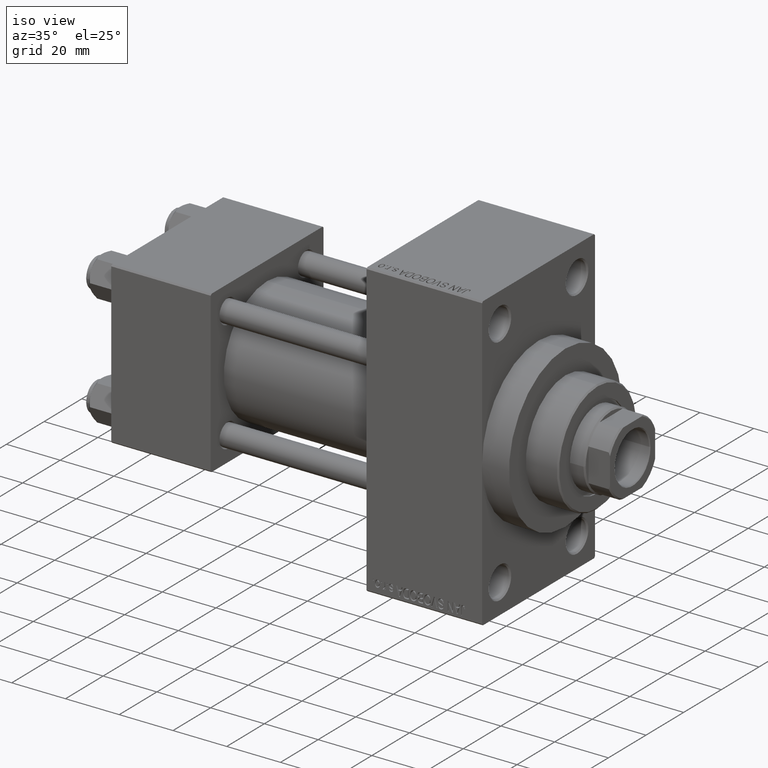
[diagram: clean part render]
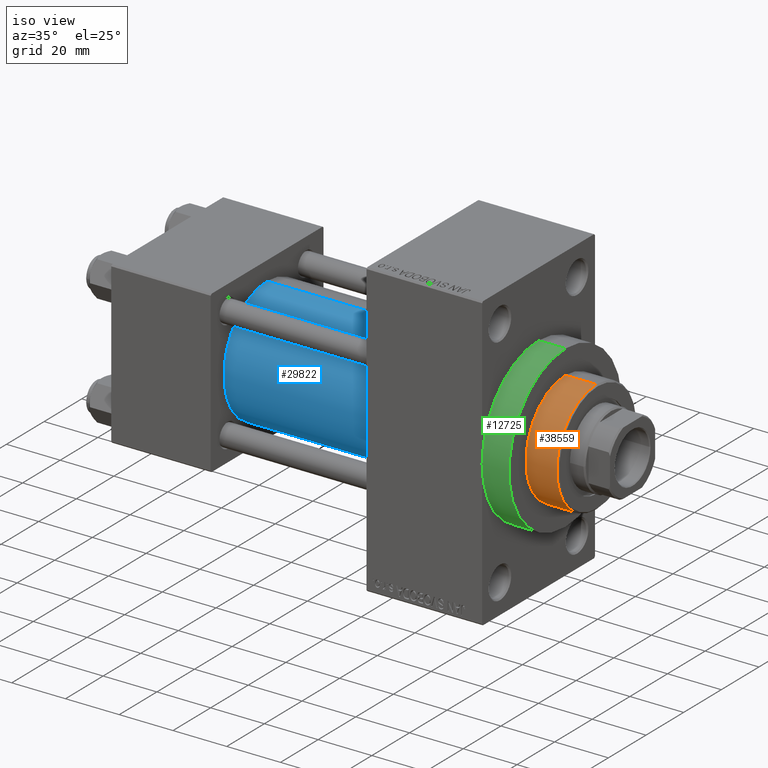
[diagram: same view with three faces highlighted in distinct colors, each labeled with its STEP entity id]
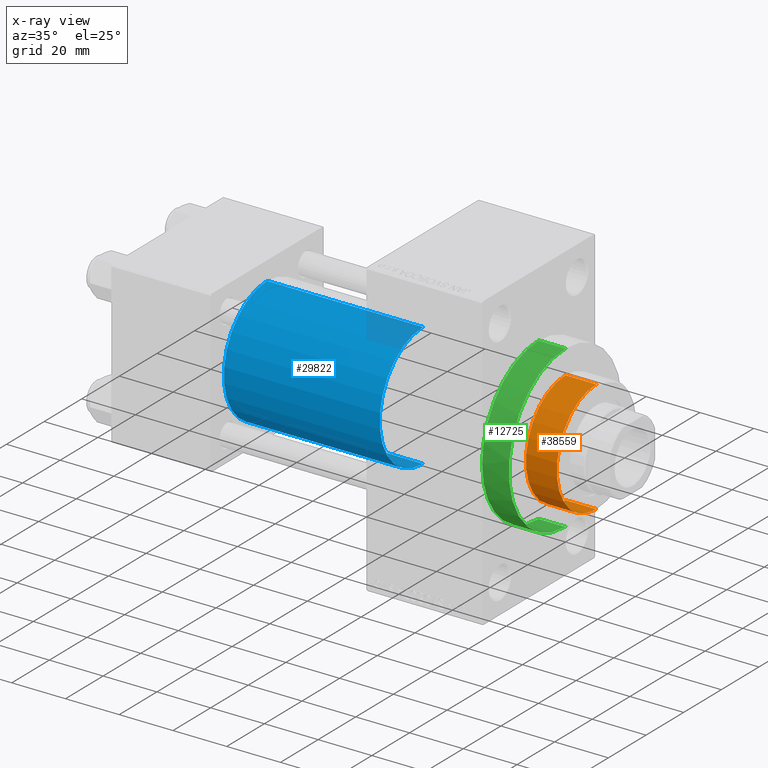
[diagram: x-ray of the same camera — body ghosted, the three highlighted faces saturated]
A machine part, iso view with three faces highlighted in distinct colors.
The next image is the same camera in x-ray (body ghosted, the three faces saturated) — at least one of them is partly hidden behind the body in this view.
Their STEP definitions:

[orange] entity #38559 — the highlighted cylindrical surface (partial cylindrical patch) has radius 21 mm, axis along (-1, 0, 0).
#1127 = CARTESIAN_POINT ( 'NONE',  ( 0.000000000000000000, 0.000000000000000000, 54.75999999999999091 ) ) ;
#4024 = CARTESIAN_POINT ( 'NONE',  ( 0.000000000000000000, 0.000000000000000000, 43.25999999999999801 ) ) ;
#6911 = EDGE_LOOP ( 'NONE', ( #23151, #15331, #22218, #46861 ) ) ;
#8571 = VERTEX_POINT ( 'NONE', #18840 ) ;
#9020 = DIRECTION ( 'NONE',  ( 1.000000000000000000, 0.000000000000000000, 0.000000000000000000 ) ) ;
#10478 = DIRECTION ( 'NONE',  ( -0.000000000000000000, -0.000000000000000000, -1.000000000000000000 ) ) ;
#11499 = DIRECTION ( 'NONE',  ( -0.000000000000000000, -0.000000000000000000, -1.000000000000000000 ) ) ;
#12606 = LINE ( 'NONE', #13328, #21482 ) ;
#13328 = CARTESIAN_POINT ( 'NONE',  ( -21.00000000000000000, 0.000000000000000000, 55.26000000000000512 ) ) ;
#14545 = VERTEX_POINT ( 'NONE', #15371 ) ;
#15331 = ORIENTED_EDGE ( 'NONE', *, *, #26151, .T. ) ;
#15371 = CARTESIAN_POINT ( 'NONE',  ( 21.00000000000000000, 2.571758278209441661E-15, 43.25999999999999801 ) ) ;
#16104 = VECTOR ( 'NONE', #11499, 1000.000000000000000 ) ;
#17048 = VERTEX_POINT ( 'NONE', #40280 ) ;
#18840 = CARTESIAN_POINT ( 'NONE',  ( -21.00000000000000000, 0.000000000000000000, 43.25999999999999801 ) ) ;
#21262 = DIRECTION ( 'NONE',  ( -1.000000000000000000, 0.000000000000000000, 0.000000000000000000 ) ) ;
#21482 = VECTOR ( 'NONE', #42478, 1000.000000000000000 ) ;
#22218 = ORIENTED_EDGE ( 'NONE', *, *, #25302, .T. ) ;
#23151 = ORIENTED_EDGE ( 'NONE', *, *, #27623, .T. ) ;
#23499 = VERTEX_POINT ( 'NONE', #28040 ) ;
#23798 = AXIS2_PLACEMENT_3D ( 'NONE', #1127, #37705, #9020 ) ;
#25302 = EDGE_CURVE ( 'NONE', #14545, #8571, #31366, .T. ) ;
#25572 = AXIS2_PLACEMENT_3D ( 'NONE', #35830, #10478, #21262 ) ;
#26151 = EDGE_CURVE ( 'NONE', #17048, #14545, #27035, .T. ) ;
#27035 = LINE ( 'NONE', #44237, #16104 ) ;
#27542 = AXIS2_PLACEMENT_3D ( 'NONE', #4024, #33893, #43924 ) ;
#27623 = EDGE_CURVE ( 'NONE', #23499, #17048, #44374, .T. ) ;
#28040 = CARTESIAN_POINT ( 'NONE',  ( -21.00000000000000000, 0.000000000000000000, 54.75999999999999091 ) ) ;
#28428 = FACE_OUTER_BOUND ( 'NONE', #6911, .T. ) ;
#29720 = EDGE_CURVE ( 'NONE', #23499, #8571, #12606, .T. ) ;
#31366 = CIRCLE ( 'NONE', #27542, 21.00000000000000000 ) ;
#33893 = DIRECTION ( 'NONE',  ( 0.000000000000000000, 0.000000000000000000, 1.000000000000000000 ) ) ;
#35830 = CARTESIAN_POINT ( 'NONE',  ( 0.000000000000000000, 0.000000000000000000, 55.26000000000000512 ) ) ;
#37705 = DIRECTION ( 'NONE',  ( 0.000000000000000000, 0.000000000000000000, -1.000000000000000000 ) ) ;
#38559 = ADVANCED_FACE ( 'NONE', ( #28428 ), #46801, .T. ) ;
#40280 = CARTESIAN_POINT ( 'NONE',  ( 21.00000000000000000, 2.571758278209441661E-15, 54.75999999999999091 ) ) ;
#42478 = DIRECTION ( 'NONE',  ( -0.000000000000000000, -0.000000000000000000, -1.000000000000000000 ) ) ;
#43924 = DIRECTION ( 'NONE',  ( 1.000000000000000000, 0.000000000000000000, 0.000000000000000000 ) ) ;
#44237 = CARTESIAN_POINT ( 'NONE',  ( 21.00000000000000000, 2.571758278209441661E-15, 55.26000000000000512 ) ) ;
#44374 = CIRCLE ( 'NONE', #23798, 21.00000000000000000 ) ;
#46801 = CYLINDRICAL_SURFACE ( 'NONE', #25572, 21.00000000000000000 ) ;
#46861 = ORIENTED_EDGE ( 'NONE', *, *, #29720, .F. ) ;

[blue] entity #29822 — the highlighted cylindrical surface (partial cylindrical patch) has radius 23 mm, axis along (-1, -0, -0).
#762 = CARTESIAN_POINT ( 'NONE',  ( 95.00000000000000000, 2.146024240737012665E-16, -23.00000000000000000 ) ) ;
#2893 = EDGE_CURVE ( 'NONE', #28027, #8081, #33810, .T. ) ;
#3480 = DIRECTION ( 'NONE',  ( 0.000000000000000000, 0.000000000000000000, -1.000000000000000000 ) ) ;
#4341 = CARTESIAN_POINT ( 'NONE',  ( 37.00000000000000000, -2.602085213965210642E-15, 0.000000000000000000 ) ) ;
#4638 = DIRECTION ( 'NONE',  ( -1.000000000000000000, -0.000000000000000000, -0.000000000000000000 ) ) ;
#6622 = DIRECTION ( 'NONE',  ( -1.000000000000000000, -0.000000000000000000, -0.000000000000000000 ) ) ;
#8081 = VERTEX_POINT ( 'NONE', #43337 ) ;
#8805 = CIRCLE ( 'NONE', #25595, 23.00000000000000000 ) ;
#11678 = VERTEX_POINT ( 'NONE', #762 ) ;
#11969 = CIRCLE ( 'NONE', #20387, 23.00000000000000000 ) ;
#13306 = LINE ( 'NONE', #27894, #21580 ) ;
#14668 = CARTESIAN_POINT ( 'NONE',  ( 95.00000000000000000, -2.602085213965210642E-15, 23.00000000000000000 ) ) ;
#16003 = ORIENTED_EDGE ( 'NONE', *, *, #2893, .T. ) ;
#16574 = EDGE_CURVE ( 'NONE', #8081, #27350, #11969, .T. ) ;
#17638 = DIRECTION ( 'NONE',  ( 0.000000000000000000, 0.000000000000000000, 1.000000000000000000 ) ) ;
#18951 = DIRECTION ( 'NONE',  ( 1.000000000000000000, -0.000000000000000000, 0.000000000000000000 ) ) ;
#20387 = AXIS2_PLACEMENT_3D ( 'NONE', #4341, #18951, #33526 ) ;
#21580 = VECTOR ( 'NONE', #24321, 1000.000000000000000 ) ;
#21691 = CYLINDRICAL_SURFACE ( 'NONE', #43591, 23.00000000000000000 ) ;
#24321 = DIRECTION ( 'NONE',  ( -1.000000000000000000, -0.000000000000000000, -0.000000000000000000 ) ) ;
#25029 = CARTESIAN_POINT ( 'NONE',  ( 95.00000000000000000, -2.602085213965210642E-15, 0.000000000000000000 ) ) ;
#25595 = AXIS2_PLACEMENT_3D ( 'NONE', #25029, #43409, #3480 ) ;
#26271 = ORIENTED_EDGE ( 'NONE', *, *, #16574, .T. ) ;
#27350 = VERTEX_POINT ( 'NONE', #29932 ) ;
#27894 = CARTESIAN_POINT ( 'NONE',  ( 95.00000000000000000, 2.146024240737012665E-16, -23.00000000000000000 ) ) ;
#28027 = VERTEX_POINT ( 'NONE', #14668 ) ;
#29772 = CARTESIAN_POINT ( 'NONE',  ( 95.00000000000000000, -2.602085213965210642E-15, 23.00000000000000000 ) ) ;
#29822 = ADVANCED_FACE ( 'NONE', ( #39618 ), #21691, .T. ) ;
#29932 = CARTESIAN_POINT ( 'NONE',  ( 37.00000000000000000, 2.146024240737012665E-16, -23.00000000000000000 ) ) ;
#30019 = EDGE_LOOP ( 'NONE', ( #39297, #46938, #16003, #26271 ) ) ;
#33497 = EDGE_CURVE ( 'NONE', #11678, #27350, #13306, .T. ) ;
#33526 = DIRECTION ( 'NONE',  ( 0.000000000000000000, 0.000000000000000000, 1.000000000000000000 ) ) ;
#33810 = LINE ( 'NONE', #29772, #44007 ) ;
#39297 = ORIENTED_EDGE ( 'NONE', *, *, #33497, .F. ) ;
#39376 = CARTESIAN_POINT ( 'NONE',  ( 95.00000000000000000, -2.602085213965210642E-15, 0.000000000000000000 ) ) ;
#39618 = FACE_OUTER_BOUND ( 'NONE', #30019, .T. ) ;
#39800 = EDGE_CURVE ( 'NONE', #28027, #11678, #8805, .T. ) ;
#43337 = CARTESIAN_POINT ( 'NONE',  ( 37.00000000000000000, -2.602085213965210642E-15, 23.00000000000000000 ) ) ;
#43409 = DIRECTION ( 'NONE',  ( 1.000000000000000000, 0.000000000000000000, 0.000000000000000000 ) ) ;
#43591 = AXIS2_PLACEMENT_3D ( 'NONE', #39376, #6622, #17638 ) ;
#44007 = VECTOR ( 'NONE', #4638, 1000.000000000000000 ) ;
#46938 = ORIENTED_EDGE ( 'NONE', *, *, #39800, .F. ) ;

[green] entity #12725 — the highlighted cylindrical surface (partial cylindrical patch) has radius 30 mm, axis along (-1, -0, -0).
#73 = DIRECTION ( 'NONE',  ( 1.000000000000000000, 0.000000000000000000, 0.000000000000000000 ) ) ;
#1866 = CARTESIAN_POINT ( 'NONE',  ( 138.0000000000000000, -30.00000000000000000, 0.000000000000000000 ) ) ;
#2098 = VERTEX_POINT ( 'NONE', #1866 ) ;
#2581 = CIRCLE ( 'NONE', #8690, 30.00000000000000000 ) ;
#3547 = AXIS2_PLACEMENT_3D ( 'NONE', #26869, #41431, #33565 ) ;
#4494 = EDGE_CURVE ( 'NONE', #2098, #33941, #33386, .T. ) ;
#5288 = ORIENTED_EDGE ( 'NONE', *, *, #16993, .T. ) ;
#7036 = FACE_OUTER_BOUND ( 'NONE', #33618, .T. ) ;
#7138 = DIRECTION ( 'NONE',  ( -1.000000000000000000, -0.000000000000000000, -0.000000000000000000 ) ) ;
#8690 = AXIS2_PLACEMENT_3D ( 'NONE', #21831, #73, #32824 ) ;
#9051 = CIRCLE ( 'NONE', #29666, 30.00000000000000000 ) ;
#9403 = EDGE_CURVE ( 'NONE', #16794, #33941, #27555, .T. ) ;
#12725 = ADVANCED_FACE ( 'NONE', ( #7036 ), #18044, .T. ) ;
#13770 = CARTESIAN_POINT ( 'NONE',  ( 148.0000000000000284, 0.000000000000000000, 30.00000000000000000 ) ) ;
#14388 = CARTESIAN_POINT ( 'NONE',  ( 138.0000000000000000, 0.000000000000000000, 30.00000000000000000 ) ) ;
#16733 = CARTESIAN_POINT ( 'NONE',  ( 138.0000000000000000, 3.673940397442059178E-15, -30.00000000000000000 ) ) ;
#16794 = VERTEX_POINT ( 'NONE', #43204 ) ;
#16993 = EDGE_CURVE ( 'NONE', #42474, #24963, #46962, .T. ) ;
#17341 = VECTOR ( 'NONE', #24771, 1000.000000000000000 ) ;
#18044 = CYLINDRICAL_SURFACE ( 'NONE', #3547, 30.00000000000000000 ) ;
#20255 = DIRECTION ( 'NONE',  ( 1.000000000000000000, 0.000000000000000000, 0.000000000000000000 ) ) ;
#21831 = CARTESIAN_POINT ( 'NONE',  ( 148.0000000000000284, 0.000000000000000000, 0.000000000000000000 ) ) ;
#24331 = CARTESIAN_POINT ( 'NONE',  ( 138.0000000000000000, 0.000000000000000000, 0.000000000000000000 ) ) ;
#24771 = DIRECTION ( 'NONE',  ( -1.000000000000000000, -0.000000000000000000, -0.000000000000000000 ) ) ;
#24912 = ORIENTED_EDGE ( 'NONE', *, *, #46908, .T. ) ;
#24963 = VERTEX_POINT ( 'NONE', #14388 ) ;
#26125 = DIRECTION ( 'NONE',  ( 1.000000000000000000, 0.000000000000000000, 0.000000000000000000 ) ) ;
#26240 = ORIENTED_EDGE ( 'NONE', *, *, #36833, .F. ) ;
#26350 = DIRECTION ( 'NONE',  ( 0.000000000000000000, 0.000000000000000000, -1.000000000000000000 ) ) ;
#26869 = CARTESIAN_POINT ( 'NONE',  ( 148.0000000000000284, 0.000000000000000000, 0.000000000000000000 ) ) ;
#27555 = LINE ( 'NONE', #39672, #32769 ) ;
#28061 = AXIS2_PLACEMENT_3D ( 'NONE', #24331, #20255, #38647 ) ;
#29666 = AXIS2_PLACEMENT_3D ( 'NONE', #29951, #26125, #26350 ) ;
#29951 = CARTESIAN_POINT ( 'NONE',  ( 138.0000000000000000, 0.000000000000000000, 0.000000000000000000 ) ) ;
#32769 = VECTOR ( 'NONE', #7138, 1000.000000000000000 ) ;
#32824 = DIRECTION ( 'NONE',  ( 0.000000000000000000, 0.000000000000000000, -1.000000000000000000 ) ) ;
#33386 = CIRCLE ( 'NONE', #28061, 30.00000000000000000 ) ;
#33565 = DIRECTION ( 'NONE',  ( 0.000000000000000000, 0.000000000000000000, 1.000000000000000000 ) ) ;
#33618 = EDGE_LOOP ( 'NONE', ( #42619, #26240, #5288, #24912, #46594 ) ) ;
#33941 = VERTEX_POINT ( 'NONE', #16733 ) ;
#36833 = EDGE_CURVE ( 'NONE', #42474, #16794, #2581, .T. ) ;
#38647 = DIRECTION ( 'NONE',  ( 0.000000000000000000, 0.000000000000000000, -1.000000000000000000 ) ) ;
#39672 = CARTESIAN_POINT ( 'NONE',  ( 148.0000000000000284, 3.673940397442059178E-15, -30.00000000000000000 ) ) ;
#41431 = DIRECTION ( 'NONE',  ( -1.000000000000000000, -0.000000000000000000, -0.000000000000000000 ) ) ;
#42474 = VERTEX_POINT ( 'NONE', #44564 ) ;
#42619 = ORIENTED_EDGE ( 'NONE', *, *, #9403, .F. ) ;
#43204 = CARTESIAN_POINT ( 'NONE',  ( 148.0000000000000284, 3.673940397442059178E-15, -30.00000000000000000 ) ) ;
#44564 = CARTESIAN_POINT ( 'NONE',  ( 148.0000000000000284, 0.000000000000000000, 30.00000000000000000 ) ) ;
#46594 = ORIENTED_EDGE ( 'NONE', *, *, #4494, .T. ) ;
#46908 = EDGE_CURVE ( 'NONE', #24963, #2098, #9051, .T. ) ;
#46962 = LINE ( 'NONE', #13770, #17341 ) ;